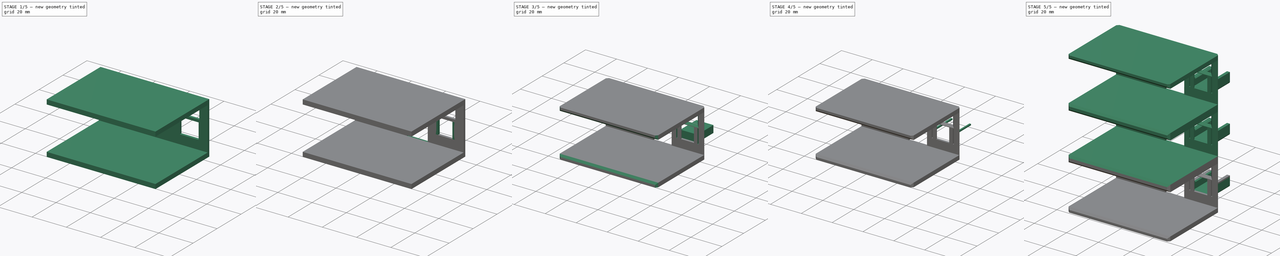
[diagram: build sequence overview — one tinted view per stage of 5, left to right]
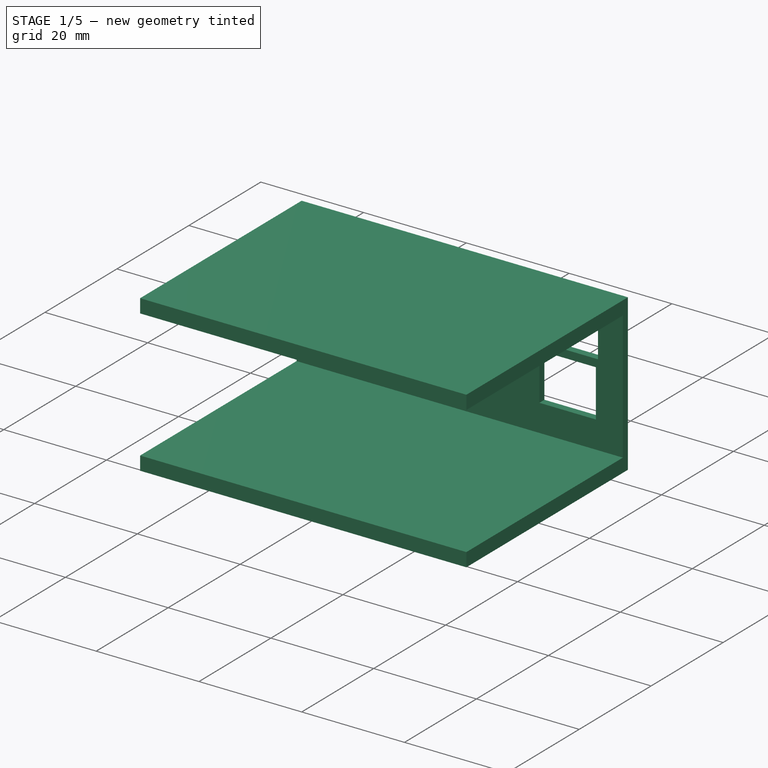
[diagram: stage 1 of 5 — iso view after this stage's code; geometry added in this stage tinted green]
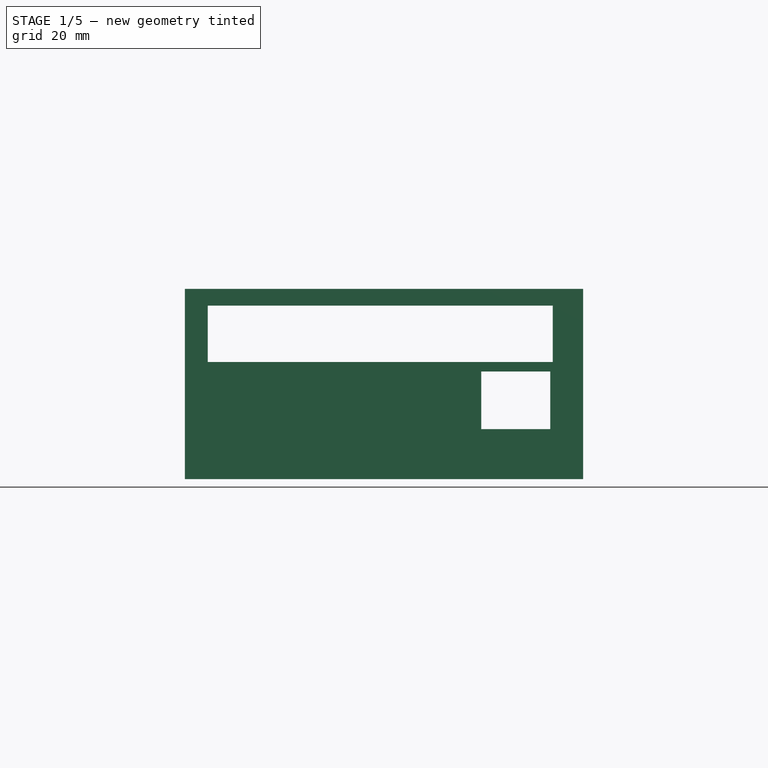
[diagram: stage 1 of 5 — front view after this stage's code; geometry added in this stage tinted green]
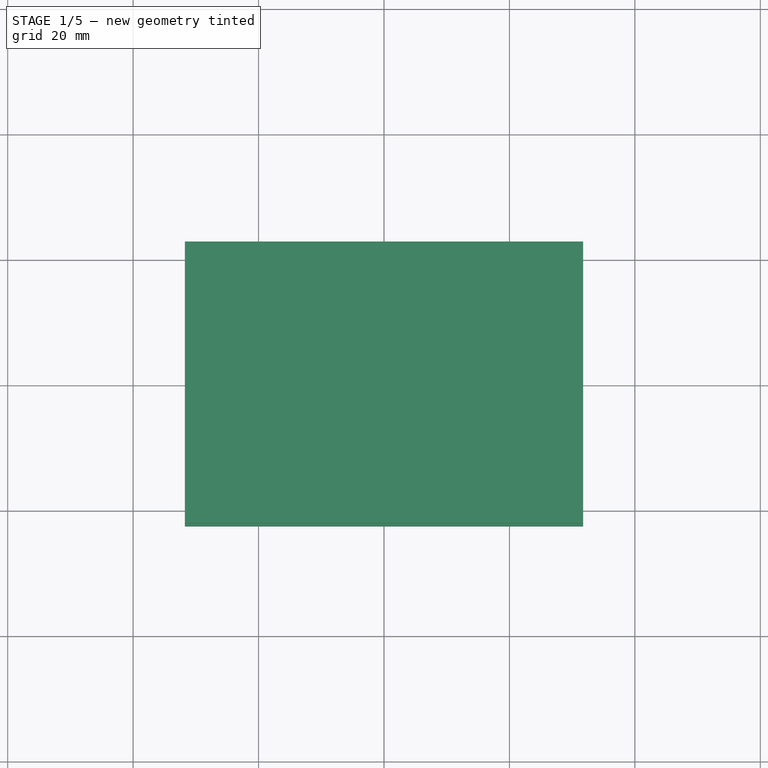
[diagram: stage 1 of 5 — top view after this stage's code; geometry added in this stage tinted green]
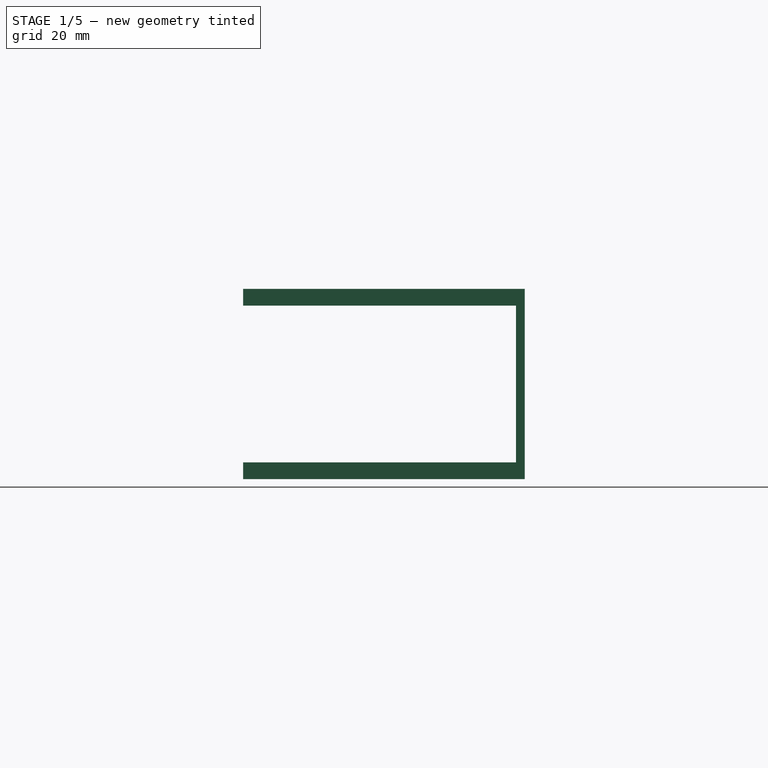
[diagram: stage 1 of 5 — right view after this stage's code; geometry added in this stage tinted green]
FCSTD DOCUMENT  (FreeCAD 0.20R29177 (Git))
Label: Hyperion Charging Dock
License: All rights reserved
LicenseURL: http://en.wikipedia.org/wiki/All_rights_reserved
objects: PartDesign::Pad×4, Part::FeaturePython×4, Sketcher::SketchObject×3, PartDesign::SubtractiveBox×3, PartDesign::Pocket×3, App::Part×2, PartDesign::ShapeBinder×1, Part::Thickness×1, Part::Part2DObjectPython×1, Part::Fuse×1, Part::Chamfer×1, PartDesign::Chamfer×1, PartDesign::Body×1, Spreadsheet::Sheet×1
note: 35 computed .brp shape members not serialized (recipe doc carries the construction recipe); baked Part::Feature solids carry a one-line shape summary decoded from their .brp

FEATURE [Sketcher::SketchObject] Sketch
  FullyConstrained = true
  Placement = pos=(0,0,0) rot=(1,0,0;1.5708rad)
  expr: Constraints[8] = 2.5"
  expr: Constraints[9] = 24mm + 0.125" + 0.125"
  sketch-geometry (4):
    g0: LineSegment StartX=-31.75 StartY=15.175 StartZ=0 EndX=31.75 EndY=15.175 EndZ=0
    g1: LineSegment StartX=31.75 StartY=15.175 StartZ=0 EndX=31.75 EndY=-15.175 EndZ=0
    g2: LineSegment StartX=31.75 StartY=-15.175 StartZ=0 EndX=-31.75 EndY=-15.175 EndZ=0
    g3: LineSegment StartX=-31.75 StartY=-15.175 StartZ=0 EndX=-31.75 EndY=15.175 EndZ=0
  constraints (10):
    c: Coincident(g0,g1)
    c: Coincident(g1,g2)
    c: Coincident(g2,g3)
    c: Coincident(g3,g0)
    c: Horizontal(g2)
    c: Vertical(g1)
    c: Symmetric(g0,g0,g-2)
    c: Symmetric(g2,g0,g-1)
    c: DistanceX(g0,g0) = 63.5
    c: DistanceY(g1,g1) = 30.35
FEATURE [PartDesign::Pad] Pad
  Direction = (0,-1,2e-16)
  Length = 44.9
  Length2 = 10
  Midplane = true
  Placement = pos=(0,0,0) rot=(1,0,0;1.5708rad)
  Profile = -> Sketch
  ReferenceAxis = -> Sketch [N_Axis]
  Type = 0
  expr: Length = 3 / 4 * 58mm + 1.4mm
FEATURE [PartDesign::SubtractiveBox] Box  label="Indent"
  AttacherType = Attacher::AttachEngine3D
  AttachmentOffset = pos=(-39.1,-12.5,-43.5) rot=(0,0,1;0rad)
  BaseFeature = -> Pad
  Height = 46.5
  Length = 76.2
  MapMode = 5
  Placement = pos=(-39.1,21.05,-12.5) rot=(1,0,0;1.5708rad)
  Support = -> [Pad]
  Width = 25
  expr: .AttachmentOffset.Base.z = -3 / 4 * 58mm
  expr: Width = 25
FEATURE [Part::Part2DObjectPython] Clone2D  label="Sketch001 (2D)"  # Draft 2D object (typed FeaturePython)
  AttachmentOffset = pos=(31.75,-37.5,0) rot=(0,0,1;0rad)
  Fuse = false
  MapMode = 5
  Objects = -> [Sketch001]
  Placement = pos=(31.75,22.45,37.5) rot=(-1,0,0;1.5708rad)
  Scale = (1,2,1)
  Support = -> [Pad]
FEATURE [PartDesign::Pocket] Pocket  label="USB Hole"
  BaseFeature = -> Box
  Direction = (0,-1,4e-16)
  Length = 5
  Length2 = 5
  Midplane = true
  Placement = pos=(-39.1,21.05,-12.5) rot=(1,0,0;1.5708rad)
  Profile = -> Clone2D
  ReferenceAxis = -> Clone2D [N_Axis]
  Type = 0
FEATURE [PartDesign::SubtractiveBox] Box001  label="Strap Support Hole"
  AttacherType = Attacher::AttachEngine3D
  AttachmentOffset = pos=(11,16,-5) rot=(0,0,1;0rad)
  BaseFeature = -> Pocket
  Height = 10
  Length = 55
  MapMode = 5
  Placement = pos=(-28.1,26.05,3.5) rot=(1,0,0;1.5708rad)
  Support = -> [Pocket]
  Width = 9
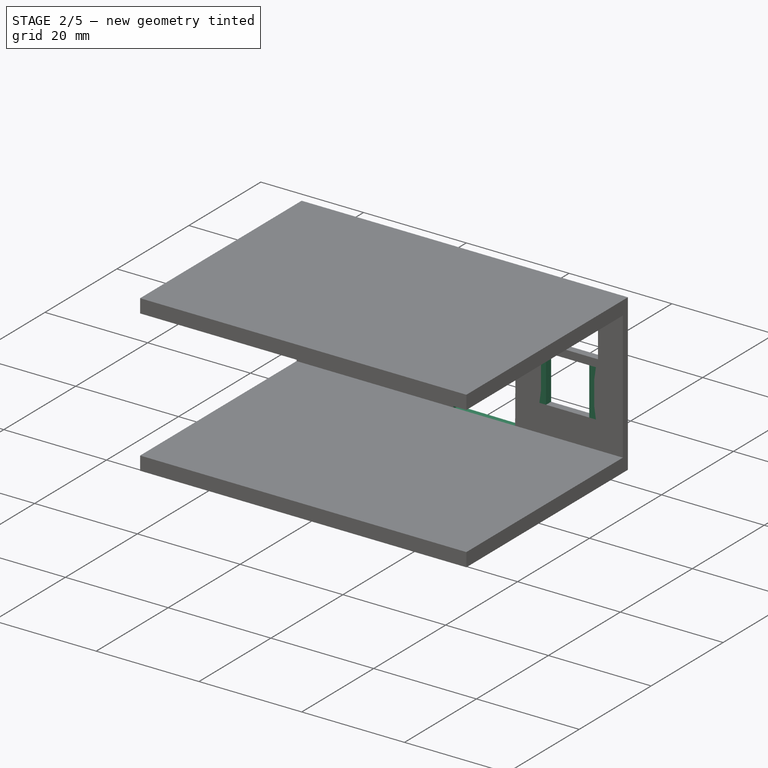
[diagram: stage 2 of 5 — iso view after this stage's code; geometry added in this stage tinted green]
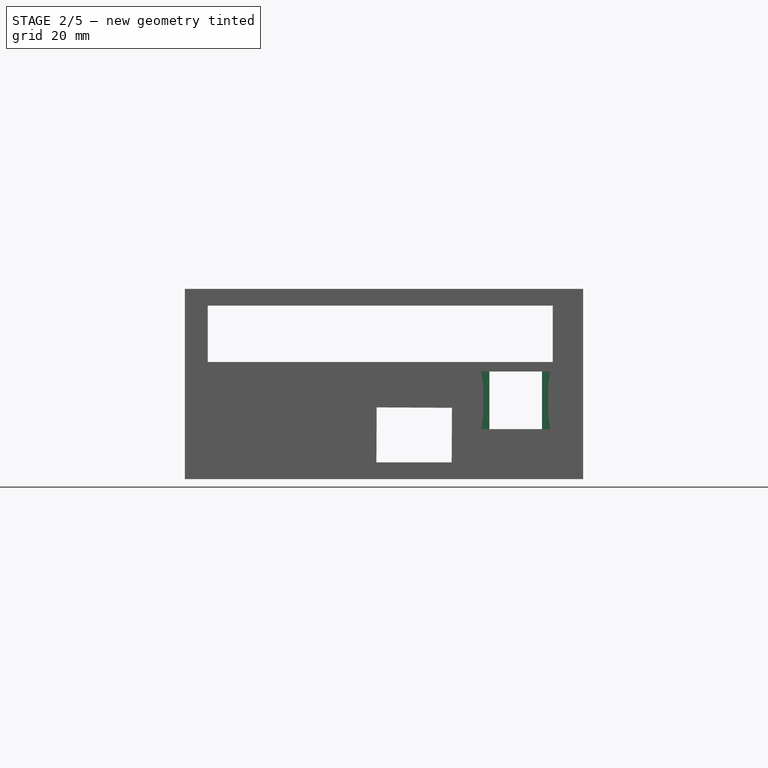
[diagram: stage 2 of 5 — front view after this stage's code; geometry added in this stage tinted green]
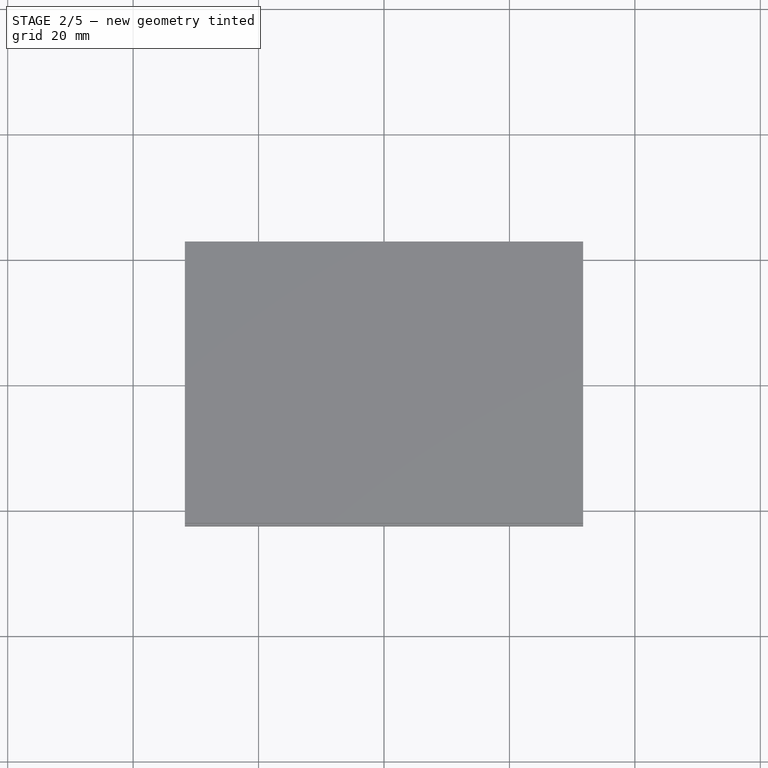
[diagram: stage 2 of 5 — top view after this stage's code; geometry added in this stage tinted green]
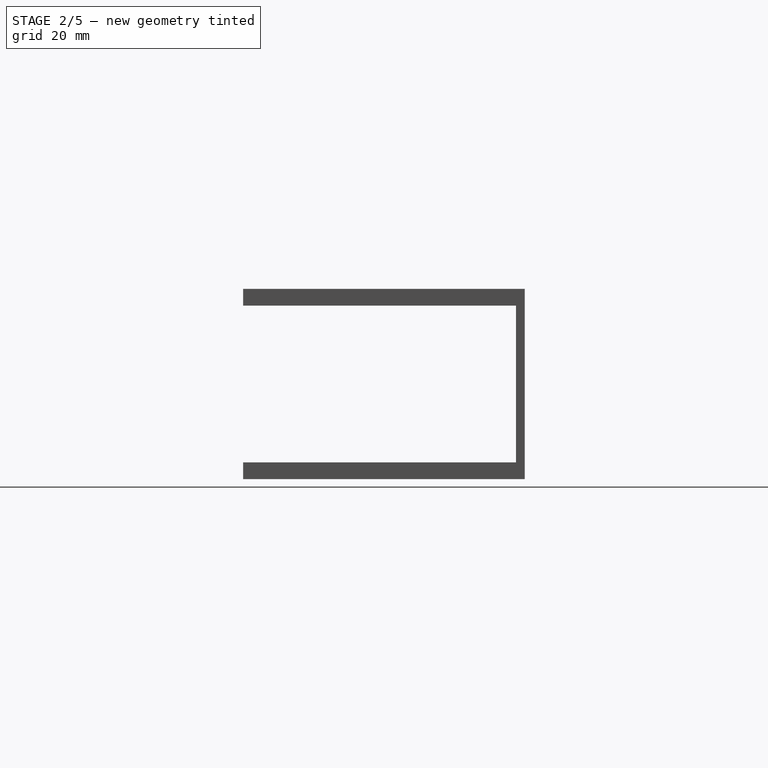
[diagram: stage 2 of 5 — right view after this stage's code; geometry added in this stage tinted green]
FEATURE [PartDesign::SubtractiveBox] Box002  label="Power Switch Hole"
  AttacherType = Attacher::AttachEngine3D
  AttachmentOffset = pos=(-9,0.6,0) rot=(0,0,1;0.008727rad)
  BaseFeature = -> Box001
  Height = 10
  Length = 9
  MapMode = 45
  Placement = pos=(-1.21442,21.05,-12.7273) rot=(0.579434,0.576306,0.576306;4.19191rad)
  Support = -> [Box001]
  Width = 12
  expr: .AttachmentOffset.Base.y = 9.6mm - 11mm + 2mm
FEATURE [PartDesign::Pad] Pad002  label="USB Stopper Right"
  BaseFeature = -> Box002
  Direction = (2,9e-16,1e-16)
  Length = 1.3
  Length2 = 10
  Placement = pos=(-1.21442,21.05,-12.7273) rot=(0.579434,0.576306,0.576306;4.19191rad)
  Profile = -> Box002 [Face18]
  Type = 0
FEATURE [PartDesign::Pad] Pad003  label="USB Stopper Left"
  BaseFeature = -> Pad002
  Direction = (-2,-1.8e-15,3e-16)
  Length = 1.3
  Length2 = 10
  Placement = pos=(-1.21442,21.05,-12.7273) rot=(0.579434,0.576306,0.576306;4.19191rad)
  Profile = -> Pad002 [Face15]
  Type = 0
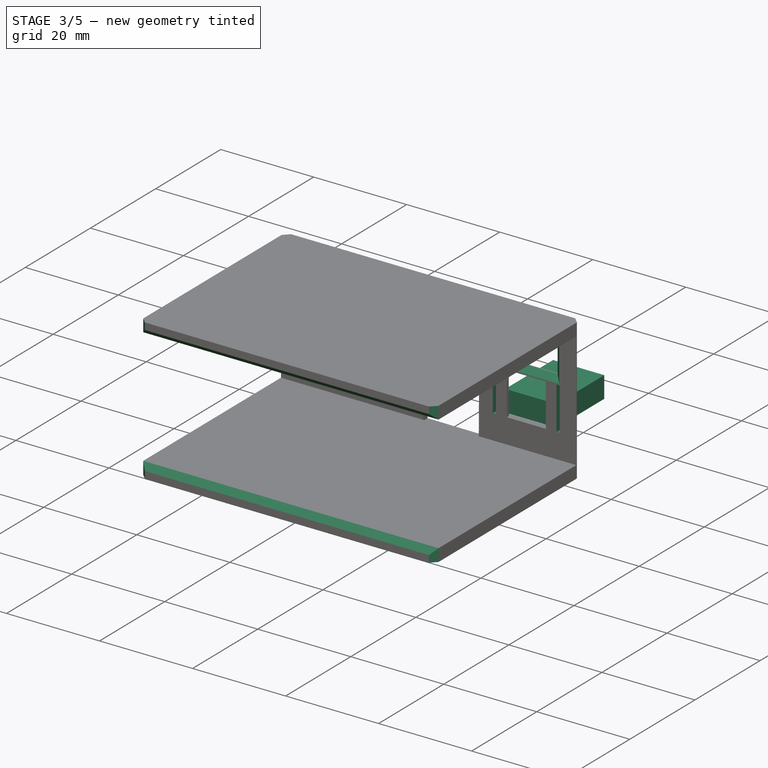
[diagram: stage 3 of 5 — iso view after this stage's code; geometry added in this stage tinted green]
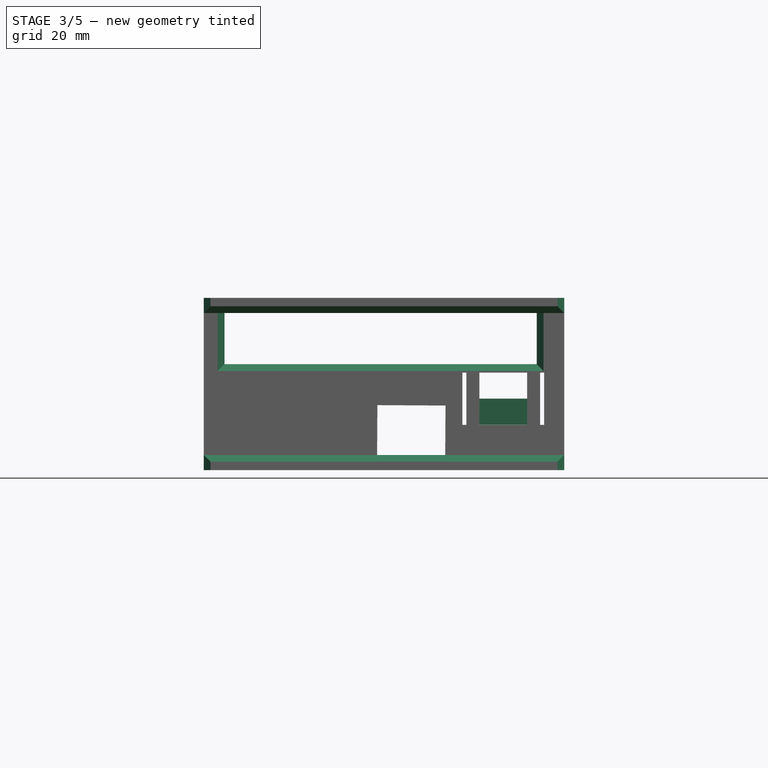
[diagram: stage 3 of 5 — front view after this stage's code; geometry added in this stage tinted green]
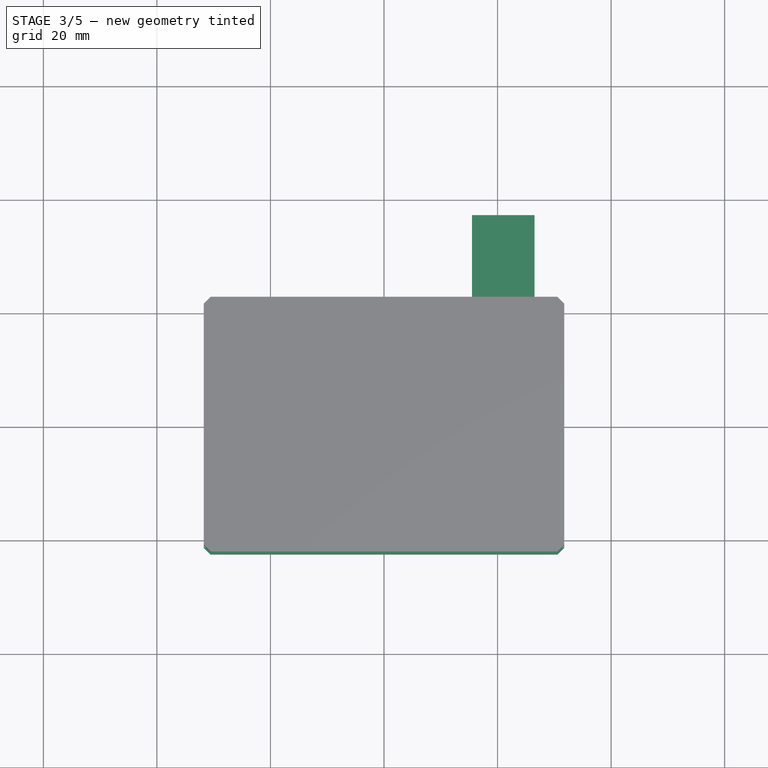
[diagram: stage 3 of 5 — top view after this stage's code; geometry added in this stage tinted green]
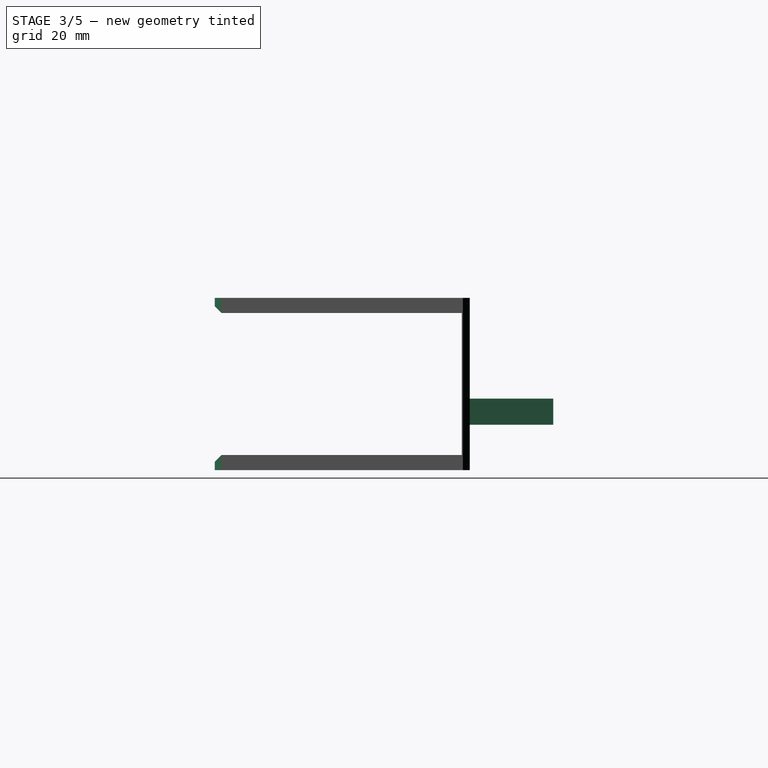
[diagram: stage 3 of 5 — right view after this stage's code; geometry added in this stage tinted green]
FEATURE [PartDesign::ShapeBinder] ReferenceLinearPattern  label="Holder Rear Face"
  Placement = pos=(0,22.45,-7e-15) rot=(0,0,1;0rad)
  Support = -> [Pad]
  TraceSupport = false
FEATURE [Sketcher::SketchObject] Sketch001  label="USB Sketch"
  AttachmentOffset = pos=(0,0,0) rot=(0,0,1;-1.5708rad)
  ExternalGeometry = -> [ReferenceLinearPattern]
  FullyConstrained = true
  MapMode = 6
  Placement = pos=(31.75,22.45,15.175) rot=(-1,0,0;1.5708rad)
  Support = -> [ReferenceLinearPattern]
  expr: Constraints[10] = 8mm
  expr: Constraints[11] = 34.5mm - 1.25" + 2.5mm
  expr: Constraints[8] = Spreadsheet.usb_width
  expr: Constraints[9] = Spreadsheet.usb_height
  sketch-geometry (4):
    g0: LineSegment StartX=-16.25 StartY=17.75 StartZ=0 EndX=-5.25 EndY=17.75 EndZ=0
    g1: LineSegment StartX=-5.25 StartY=17.75 StartZ=0 EndX=-5.25 EndY=22.35 EndZ=0
    g2: LineSegment StartX=-5.25 StartY=22.35 StartZ=0 EndX=-16.25 EndY=22.35 EndZ=0
    g3: LineSegment StartX=-16.25 StartY=22.35 StartZ=0 EndX=-16.25 EndY=17.75 EndZ=0
  constraints (12):
    c: Coincident(g0,g1)
    c: Coincident(g1,g2)
    c: Coincident(g2,g3)
    c: Coincident(g3,g0)
    c: Horizontal(g0)
    c: Horizontal(g2)
    c: Vertical(g1)
    c: Vertical(g3)
    c: DistanceX(g2,g2) = 11
    c: DistanceY(g1,g1) = 4.6
    c: DistanceY(g1,g-9) = 8
    c: DistanceX(g1,g-9) = 5.25
FEATURE [PartDesign::Pad] Pad001  label="USB Template"
  Direction = (1e-16,1,-2e-16)
  Length = 14.7
  Length2 = 10
  Placement = pos=(0,22.45,-7e-15) rot=(0,0,1;0rad)
  Profile = -> Sketch001
  ReferenceAxis = -> Sketch001 [N_Axis]
  Type = 0
  expr: Length = Spreadsheet.usb_length
FEATURE [PartDesign::Pocket] Pocket001  label="USB Stopper Shrinker"
  BaseFeature = -> Pad003
  Direction = (1.02e-14,-9.2,-1.6e-14)
  Length = 0.8
  Length2 = 5
  Placement = pos=(-1.21442,21.05,-12.7273) rot=(0.579434,0.576306,0.576306;4.19191rad)
  Profile = -> Pad003 [Face15,Face16]
  Type = 0
FEATURE [App::Part] Part001  label="USB Port"
  Group = -> [Facebinder,ReferenceLinearPattern,Facebinder002,Pad001,Thickness,Facebinder003,Fusion,Sketch001,Chamfer001]
  Origin = -> Origin003
FEATURE [Sketcher::SketchObject] Sketch002
  AttachmentOffset = pos=(0,0,0) rot=(0,0,1;1.5708rad)
  ExternalGeometry = -> [Pocket001]
  FullyConstrained = false
  MapMode = 6
  Placement = pos=(31.75,22.45,15.175) rot=(0,-0.707107,-0.707107;3.14159rad)
  Support = -> [Pad]
  sketch-geometry (12):
    g0: LineSegment StartX=6.55 StartY=-13.175 StartZ=0 EndX=10.75 EndY=-13.175 EndZ=0
    g1: LineSegment StartX=14.95 StartY=-13.175 StartZ=0 EndX=10.75 EndY=-13.175 EndZ=0
    g2: LineSegment StartX=10.75 StartY=-13.175 StartZ=0 EndX=10.75 EndY=-13.175 EndZ=0
    g3: LineSegment StartX=4.25 StartY=-22.375 StartZ=0 EndX=3.55 EndY=-22.375 EndZ=0
    g4: LineSegment StartX=3.55 StartY=-22.375 StartZ=0 EndX=3.55 EndY=-13.175 EndZ=0
    g5: LineSegment StartX=3.55 StartY=-13.175 StartZ=0 EndX=4.25 EndY=-13.175 EndZ=0
    g6: LineSegment StartX=4.25 StartY=-13.175 StartZ=0 EndX=4.25 EndY=-22.375 EndZ=0
    g7: LineSegment StartX=17.25 StartY=-22.375 StartZ=0 EndX=17.95 EndY=-22.375 EndZ=0
    g8: LineSegment StartX=17.95 StartY=-22.375 StartZ=0 EndX=17.95 EndY=-13.175 EndZ=0
    g9: LineSegment StartX=17.95 StartY=-13.175 StartZ=0 EndX=17.25 EndY=-13.175 EndZ=0
    g10: LineSegment StartX=17.25 StartY=-13.175 StartZ=0 EndX=17.25 EndY=-22.375 EndZ=0
    g11: LineSegment StartX=10.75 StartY=-13.175 StartZ=0 EndX=10.75 EndY=-22.375 EndZ=0
  constraints (31):
    c: Coincident(g1,g0)
    c: Coincident(g2,g0)
    c: Coincident(g3,g4)
    c: Coincident(g4,g5)
    c: Coincident(g5,g6)
    c: Coincident(g6,g3)
    c: Horizontal(g5)
    c: DistanceX(g3,g3) = 0.7
    c: DistanceX(g3,g0) = 2.3
    c: Coincident(g7,g8)
    c: Coincident(g8,g9)
    c: Coincident(g9,g10)
    c: Coincident(g10,g7)
    c: Coincident(g1,g-4)
    c: Coincident(g0,g-4)
    c: Vertical(g8)
    c: Vertical(g10)
    c: Horizontal(g9)
    c: Horizontal(g7)
    c: Coincident(g11,g0)
    c: Vertical(g11)
    c: Horizontal(g11,g-3)
    c: Symmetric(g7,g3,g11)
    c: Horizontal(g3,g-3)
    c: Horizontal(g3)
    c: Vertical(g4)
    c: Horizontal(g0,g5)
    c: Vertical(g6)
    c: Horizontal(g0)
    c: Symmetric(g8,g4,g11)
    c: Equal(g1,g0)
FEATURE [PartDesign::Pocket] Pocket002  label="Strain Relievers"
  BaseFeature = -> Pocket001
  Direction = (0,-1,3e-16)
  Length = 5
  Length2 = 4
  Placement = pos=(-1.21442,21.05,-12.7273) rot=(0.579434,0.576306,0.576306;4.19191rad)
  Profile = -> Sketch002
  ReferenceAxis = -> Sketch002 [N_Axis]
  Type = 0
FEATURE [PartDesign::Chamfer] Chamfer  label="Holder Chamfer"
  Angle = 45
  Base = -> Pocket002 [Edge75,Edge44,Edge6,Edge10,Edge18,Edge14,Edge52,Edge50,Edge54,Edge12,Edge5]
  BaseFeature = -> Pocket002
  ChamferType = 0
  FlipDirection = false
  Placement = pos=(-1.21442,21.05,-12.7273) rot=(0.579434,0.576306,0.576306;4.19191rad)
  Size = 1.2
  Size2 = 1
  SupportTransform = false
  UseAllEdges = false
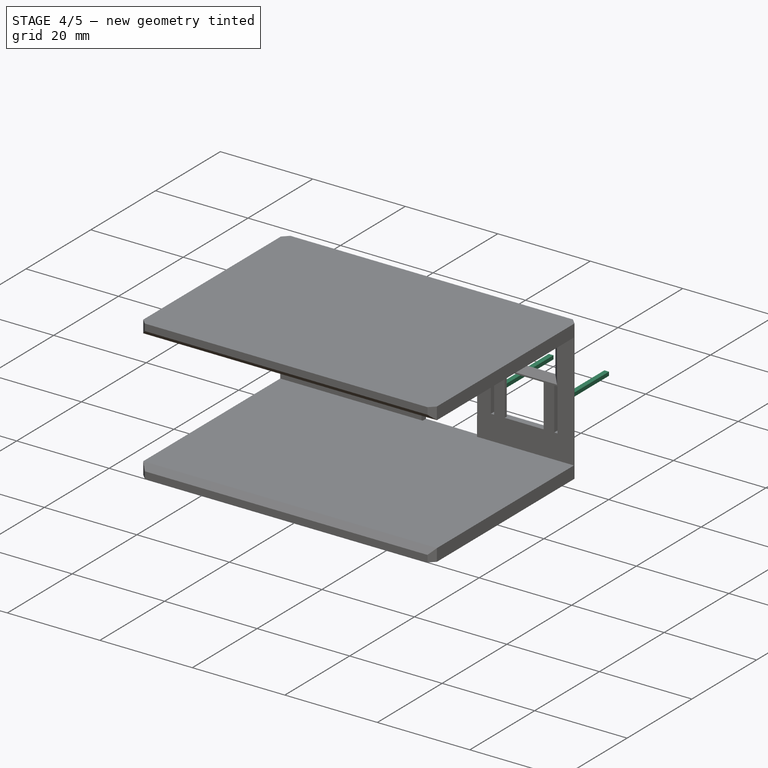
[diagram: stage 4 of 5 — iso view after this stage's code; geometry added in this stage tinted green]
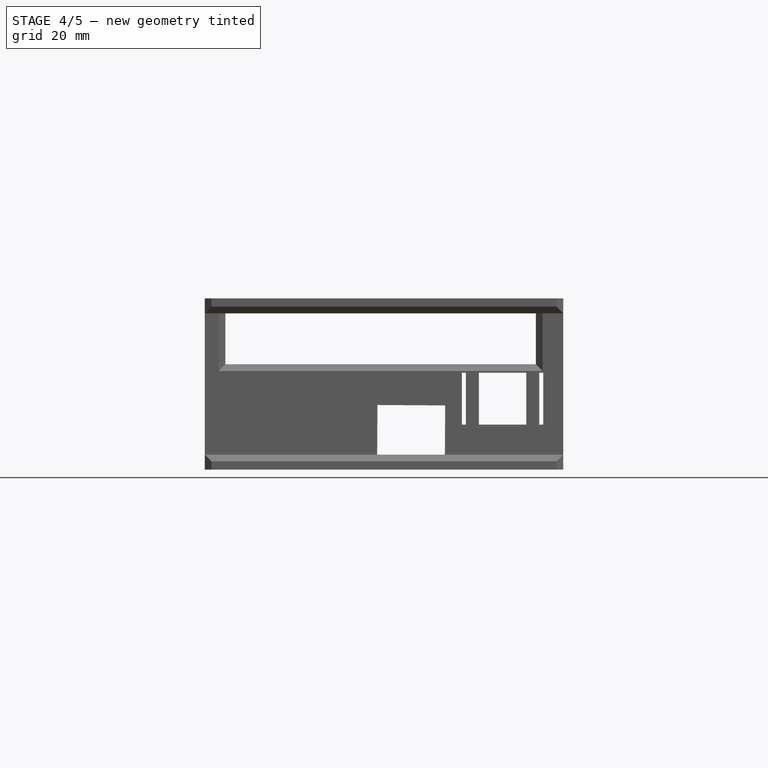
[diagram: stage 4 of 5 — front view after this stage's code; geometry added in this stage tinted green]
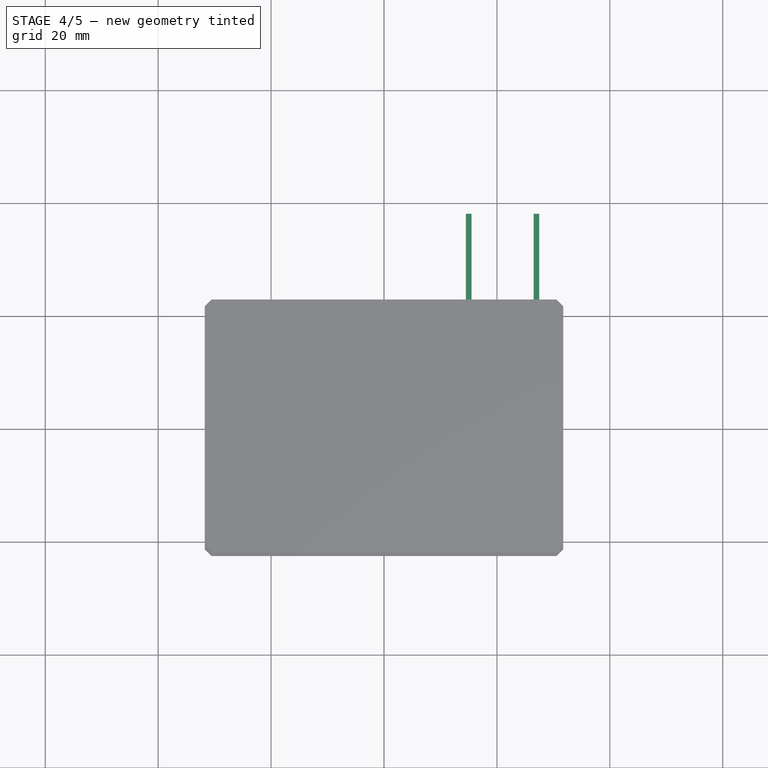
[diagram: stage 4 of 5 — top view after this stage's code; geometry added in this stage tinted green]
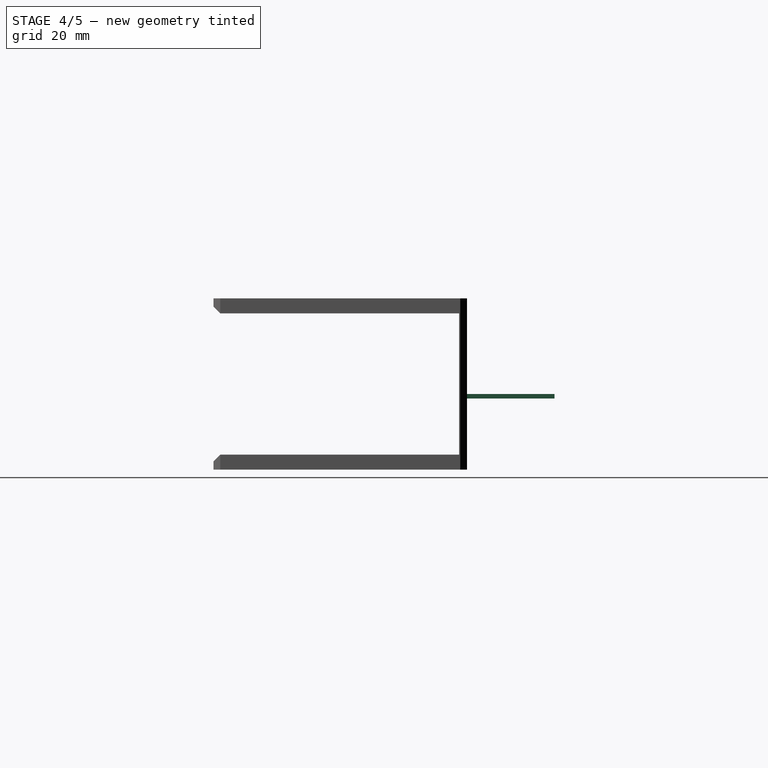
[diagram: stage 4 of 5 — right view after this stage's code; geometry added in this stage tinted green]
FEATURE [Part::Thickness] Thickness  label="USB Shell"
  Faces = -> Pad001 [Face6,Face1,Face5]
  Intersection = false
  Join = 0
  Mode = 0
  SelfIntersection = false
  Value = 1
FEATURE [Part::FeaturePython] Facebinder  label="USB Rear Extension"  # WARN: FeaturePython — macro-defined, semantics opaque (R4)
  Area = 21.7708
  Extrusion = 0.8
  Faces = -> [Thickness]
  RemoveSplitter = false
  Sew = false
FEATURE [Part::FeaturePython] Facebinder002  label="USB Top Extension"  # WARN: FeaturePython — macro-defined, semantics opaque (R4)
  Area = 31
  Extrusion = 0.8
  Faces = -> [Facebinder,Thickness]
  RemoveSplitter = false
  Sew = false
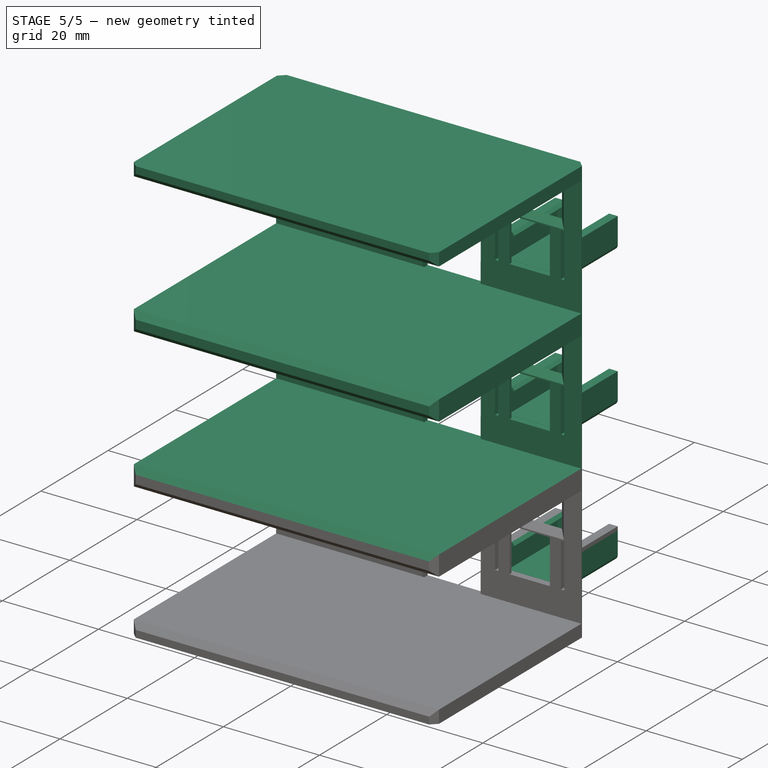
[diagram: stage 5 of 5 — iso view after this stage's code; geometry added in this stage tinted green]
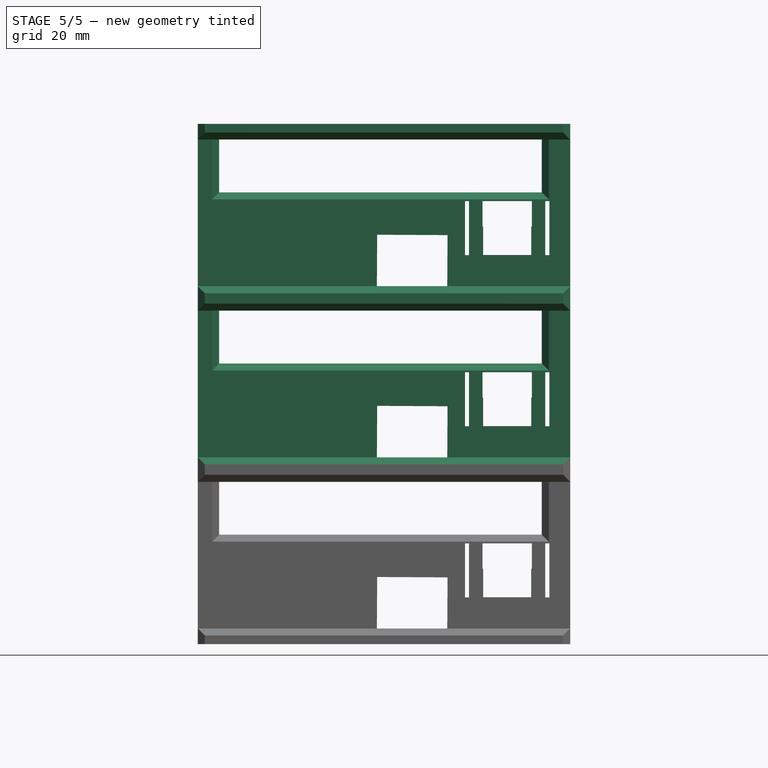
[diagram: stage 5 of 5 — front view after this stage's code; geometry added in this stage tinted green]
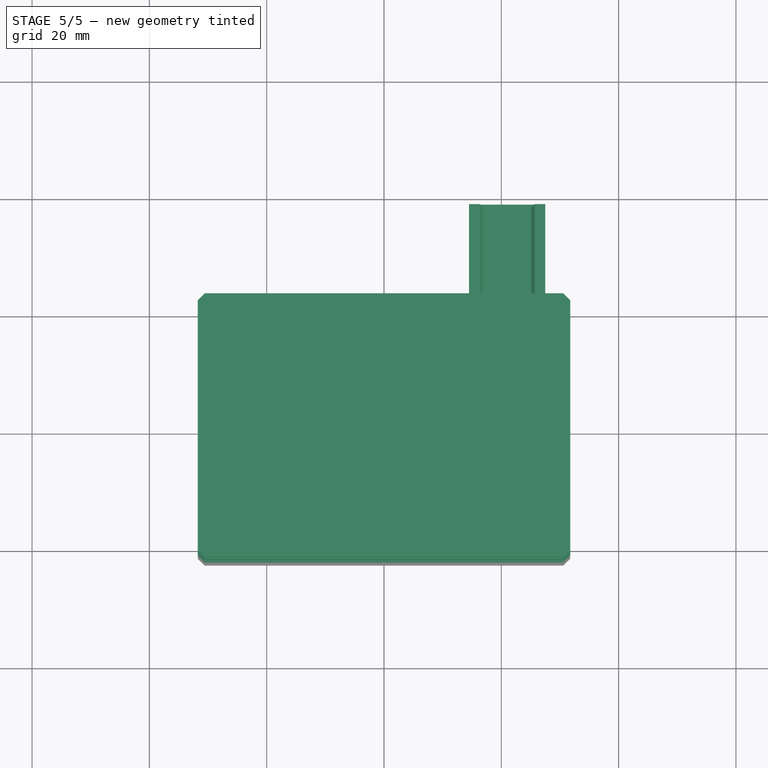
[diagram: stage 5 of 5 — top view after this stage's code; geometry added in this stage tinted green]
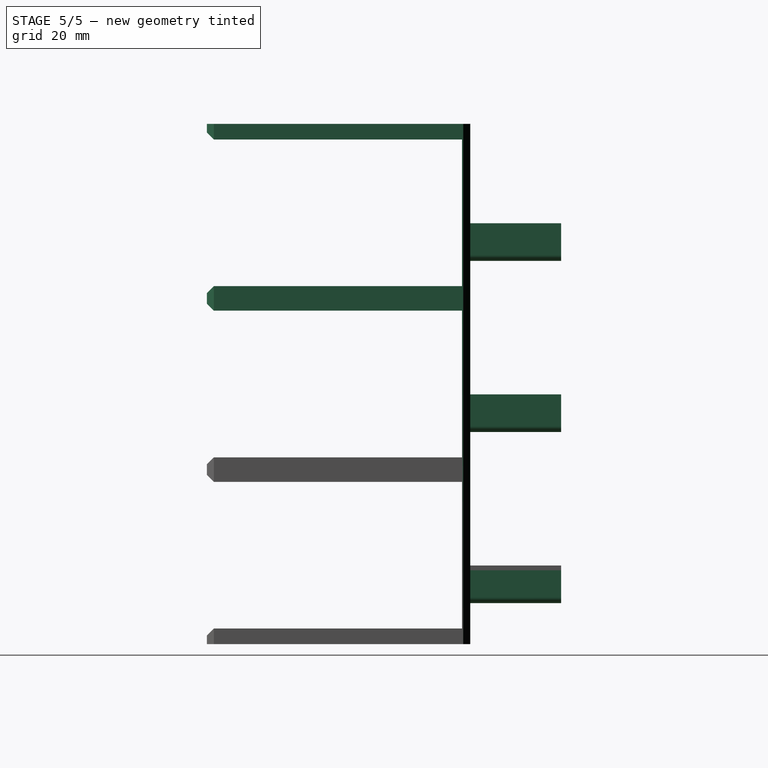
[diagram: stage 5 of 5 — right view after this stage's code; geometry added in this stage tinted green]
FEATURE [Part::FeaturePython] Facebinder003  label="USB Inwards Extension"  # WARN: FeaturePython — macro-defined, semantics opaque (R4)
  Area = 32.16
  Extrusion = 1.4
  Faces = -> [Facebinder002,Facebinder]
  RemoveSplitter = false
  Sew = false
FEATURE [Part::Fuse] Fusion  label="Fuser for Chamfer"
  Base = -> Facebinder003
  Tool = -> Facebinder002
FEATURE [Part::Chamfer] Chamfer001  label="USB Chamfer"
  Base = -> Fusion
  Edges = 6 edges r=0.6: [Edge10,Edge23,Edge29,Edge50,Edge63,Edge69]
FEATURE [PartDesign::Body] Body  label="Holder"
  Group = -> [Sketch,Pad,Box,Clone2D,Pocket,Box001,Box002,Pad002,Pad003,Pocket001,Sketch002,Pocket002,Chamfer]
  Origin = -> Origin
  Tip = -> Chamfer
FEATURE [App::Part] Part  label="SlimeVR Section"
  Group = -> [Body,Part001]
  Origin = -> Origin002
FEATURE [Part::FeaturePython] Array  label="SlimeVR Dock Tower"  # Draft array (typed FeaturePython)
  AlwaysSyncPlacement = false
  Angle = 360
  ArrayType = 0
  Axis = (0,0,1)
  Base = -> Part
  Center = (0,0,0)
  Count = 3
  ExpandArray = false
  Fuse = true
  IntervalAxis = (0,0,0)
  IntervalX = (100,0,0)
  IntervalY = (0,100,0)
  IntervalZ = (0,0,29.175)
  NumberCircles = 3
  NumberPolar = 5
  NumberX = 1
  NumberY = 1
  NumberZ = 3
  PlacementList = 3 placements: arithmetic series from (0,0,0) step (0,0,29.175) to (0,0,58.35)
  RadialDistance = 50
  ScaleList = (3) [(1,1,1),(1,1,1),(1,1,1)]
  Symmetry = 1
  TangentialDistance = 25
  expr: .IntervalZ.y = 0mm
  expr: .IntervalZ.z = 26mm + 0.125"
  expr: NumberZ = Spreadsheet.tower_count
FEATURE [Spreadsheet::Sheet] Spreadsheet  label="Variables"
  cells = A1=USB Height; B1(usb_height)==4mm + 0.6mm; A2=USB Width; B2(usb_width)==10mm + 1mm; A3=USB Length; B3(usb_length)==15mm - 0.3mm; A4=Tower Count; B4(tower_count)=3
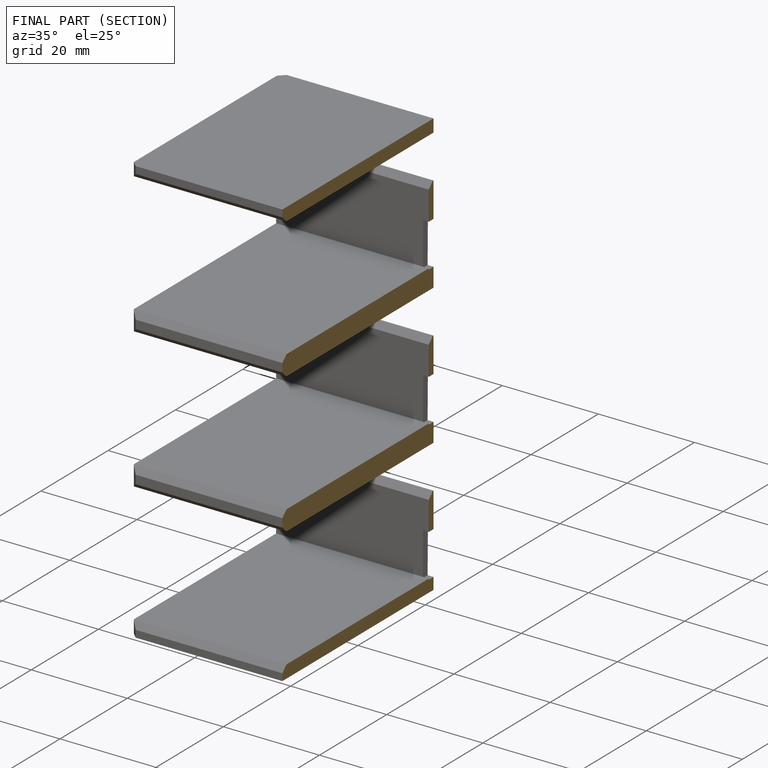
[diagram: finished part — half-section view (interior)]
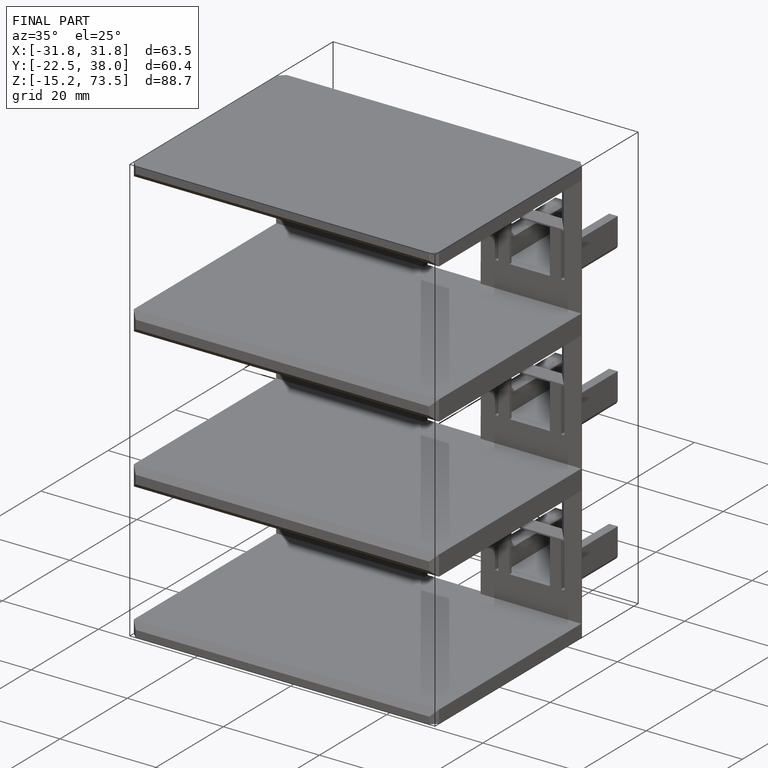
[diagram: finished part — iso view with bounding-box wireframe]
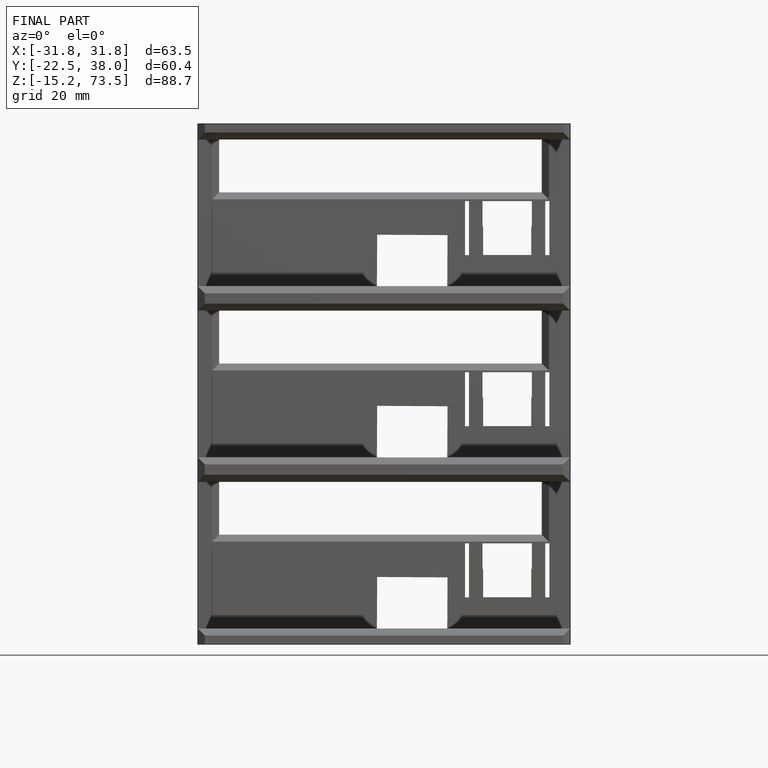
[diagram: finished part — front view with bounding-box wireframe]
